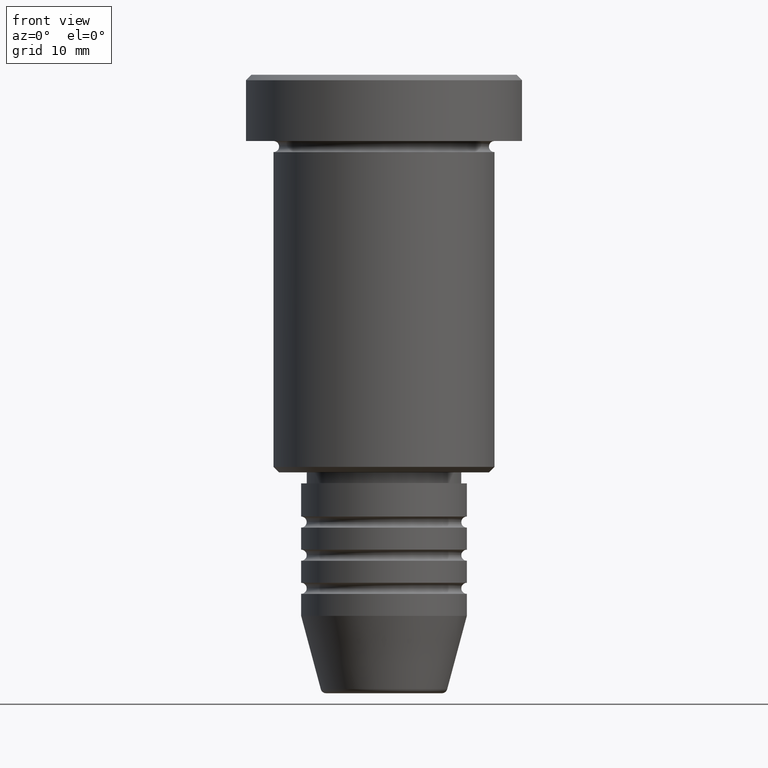
[diagram: clean part render]
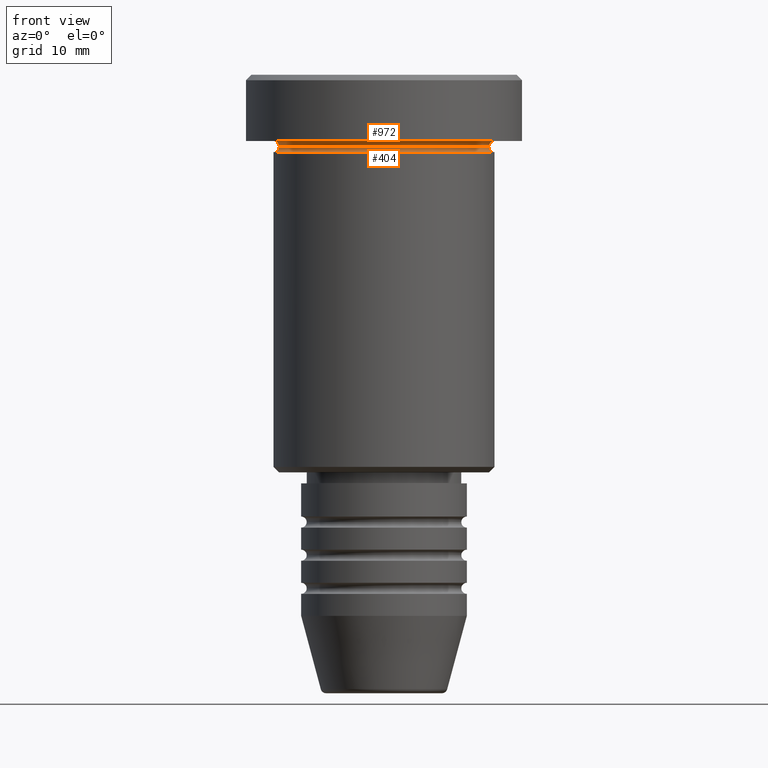
[diagram: same view with one multi-face feature highlighted, each face labeled with its STEP entity id]
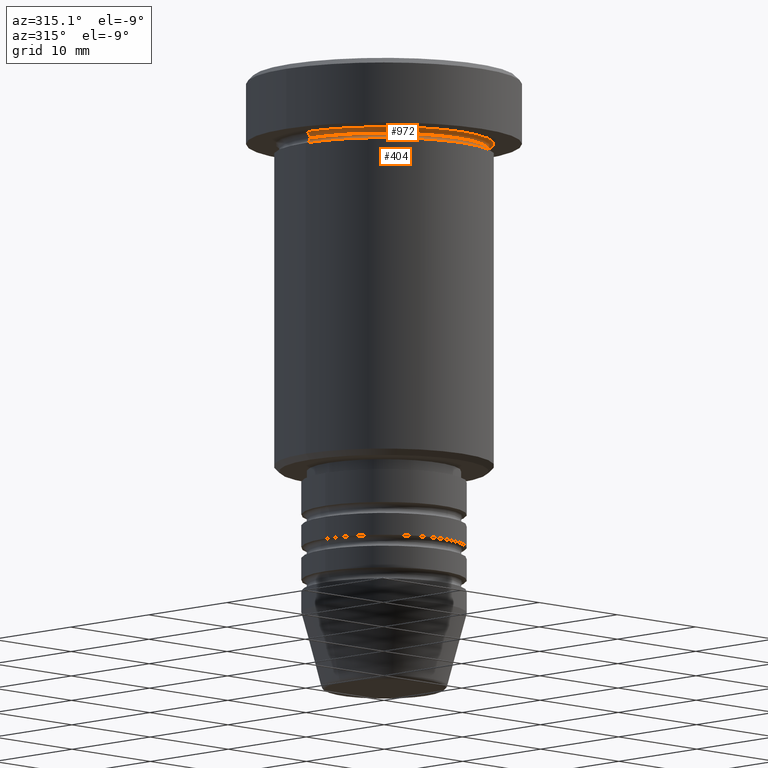
[diagram: same view with one multi-face feature highlighted, each face labeled with its STEP entity id]
A machine part, front view. The highlighted faces form ONE feature: a constant-radius fillet chain: 2 tangent blend faces with common blend radius 0.5 mm. The faces share edges in the B-rep.
A second angle (auxiliary view) of the same feature is appended — it is thin or edge-on in the first view.
Their STEP definitions:
[1] entity #404 (Torus):
#10 = DIRECTION ( 'NONE',  ( -0.000000000000000000, -0.000000000000000000, 1.000000000000000000 ) ) ;
#17 = AXIS2_PLACEMENT_3D ( 'NONE', #562, #10, #997 ) ;
#32 = CARTESIAN_POINT ( 'NONE',  ( 10.00000000000000000, 0.000000000000000000, -6.499999999999997335 ) ) ;
#45 = ORIENTED_EDGE ( 'NONE', *, *, #327, .T. ) ;
#66 = CARTESIAN_POINT ( 'NONE',  ( 9.500000000000000000, 0.000000000000000000, -6.499999999999997335 ) ) ;
#81 = DIRECTION ( 'NONE',  ( 1.000000000000000000, 0.000000000000000000, 0.000000000000000000 ) ) ;
#88 = EDGE_CURVE ( 'NONE', #528, #1172, #1055, .T. ) ;
#92 = CIRCLE ( 'NONE', #17, 10.00000000000000000 ) ;
#124 = DIRECTION ( 'NONE',  ( -0.000000000000000000, -0.000000000000000000, 1.000000000000000000 ) ) ;
#173 = CARTESIAN_POINT ( 'NONE',  ( 0.000000000000000000, 0.000000000000000000, -6.499999999999997335 ) ) ;
#245 = DIRECTION ( 'NONE',  ( -1.000000000000000000, 1.224646799147353454E-16, 0.000000000000000000 ) ) ;
#269 = EDGE_LOOP ( 'NONE', ( #725, #45, #1023, #478 ) ) ;
#281 = CARTESIAN_POINT ( 'NONE',  ( -9.500000000000000000, 1.194030629168669469E-15, -6.499999999999997335 ) ) ;
#291 = AXIS2_PLACEMENT_3D ( 'NONE', #173, #716, #81 ) ;
#311 = CIRCLE ( 'NONE', #1074, 0.5000000000000004441 ) ;
#324 = CIRCLE ( 'NONE', #570, 0.5000000000000004441 ) ;
#327 = EDGE_CURVE ( 'NONE', #528, #1036, #324, .T. ) ;
#348 = CARTESIAN_POINT ( 'NONE',  ( 10.00000000000000000, 0.000000000000000000, -6.999999999999996447 ) ) ;
#384 = AXIS2_PLACEMENT_3D ( 'NONE', #944, #124, #854 ) ;
#400 = DIRECTION ( 'NONE',  ( 0.000000000000000000, -1.000000000000000000, 0.000000000000000000 ) ) ;
#404 = ADVANCED_FACE ( 'NONE', ( #1037 ), #896, .F. ) ;
#422 = DIRECTION ( 'NONE',  ( 1.224646799147353207E-16, 1.000000000000000000, 0.000000000000000000 ) ) ;
#478 = ORIENTED_EDGE ( 'NONE', *, *, #1153, .F. ) ;
#528 = VERTEX_POINT ( 'NONE', #281 ) ;
#562 = CARTESIAN_POINT ( 'NONE',  ( 0.000000000000000000, 0.000000000000000000, -6.999999999999996447 ) ) ;
#570 = AXIS2_PLACEMENT_3D ( 'NONE', #675, #422, #245 ) ;
#629 = EDGE_CURVE ( 'NONE', #1036, #903, #92, .T. ) ;
#675 = CARTESIAN_POINT ( 'NONE',  ( -10.00000000000000000, 1.224646799147353256E-15, -6.499999999999997335 ) ) ;
#676 = DIRECTION ( 'NONE',  ( 0.000000000000000000, 0.000000000000000000, -1.000000000000000000 ) ) ;
#716 = DIRECTION ( 'NONE',  ( -0.000000000000000000, -0.000000000000000000, 1.000000000000000000 ) ) ;
#725 = ORIENTED_EDGE ( 'NONE', *, *, #88, .F. ) ;
#854 = DIRECTION ( 'NONE',  ( 1.000000000000000000, 0.000000000000000000, 0.000000000000000000 ) ) ;
#896 = TOROIDAL_SURFACE ( 'NONE', #384, 10.00000000000000000, 0.5000000000000000000 ) ;
#903 = VERTEX_POINT ( 'NONE', #348 ) ;
#944 = CARTESIAN_POINT ( 'NONE',  ( 0.000000000000000000, 0.000000000000000000, -6.499999999999997335 ) ) ;
#997 = DIRECTION ( 'NONE',  ( 1.000000000000000000, 0.000000000000000000, 0.000000000000000000 ) ) ;
#1023 = ORIENTED_EDGE ( 'NONE', *, *, #629, .T. ) ;
#1036 = VERTEX_POINT ( 'NONE', #1125 ) ;
#1037 = FACE_OUTER_BOUND ( 'NONE', #269, .T. ) ;
#1055 = CIRCLE ( 'NONE', #291, 9.500000000000000000 ) ;
#1074 = AXIS2_PLACEMENT_3D ( 'NONE', #32, #400, #676 ) ;
#1125 = CARTESIAN_POINT ( 'NONE',  ( -10.00000000000000000, 1.224646799147353256E-15, -6.999999999999996447 ) ) ;
#1153 = EDGE_CURVE ( 'NONE', #1172, #903, #311, .T. ) ;
#1172 = VERTEX_POINT ( 'NONE', #66 ) ;
[2] entity #972 (Torus):
#41 = AXIS2_PLACEMENT_3D ( 'NONE', #242, #144, #509 ) ;
#66 = CARTESIAN_POINT ( 'NONE',  ( 9.500000000000000000, 0.000000000000000000, -6.499999999999997335 ) ) ;
#81 = DIRECTION ( 'NONE',  ( 1.000000000000000000, 0.000000000000000000, 0.000000000000000000 ) ) ;
#88 = EDGE_CURVE ( 'NONE', #528, #1172, #1055, .T. ) ;
#144 = DIRECTION ( 'NONE',  ( -0.000000000000000000, -1.000000000000000000, -0.000000000000000000 ) ) ;
#173 = CARTESIAN_POINT ( 'NONE',  ( 0.000000000000000000, 0.000000000000000000, -6.499999999999997335 ) ) ;
#198 = AXIS2_PLACEMENT_3D ( 'NONE', #815, #630, #448 ) ;
#220 = ORIENTED_EDGE ( 'NONE', *, *, #544, .T. ) ;
#242 = CARTESIAN_POINT ( 'NONE',  ( -10.00000000000000000, 0.000000000000000000, -6.499999999999997335 ) ) ;
#281 = CARTESIAN_POINT ( 'NONE',  ( -9.500000000000000000, 1.194030629168669469E-15, -6.499999999999997335 ) ) ;
#291 = AXIS2_PLACEMENT_3D ( 'NONE', #173, #716, #81 ) ;
#370 = DIRECTION ( 'NONE',  ( -1.224646799147353207E-16, 1.000000000000000000, 0.000000000000000000 ) ) ;
#371 = EDGE_CURVE ( 'NONE', #672, #1152, #498, .T. ) ;
#448 = DIRECTION ( 'NONE',  ( -1.000000000000000000, 0.000000000000000000, 0.000000000000000000 ) ) ;
#456 = ORIENTED_EDGE ( 'NONE', *, *, #88, .T. ) ;
#498 = CIRCLE ( 'NONE', #778, 10.00000000000000000 ) ;
#509 = DIRECTION ( 'NONE',  ( 0.000000000000000000, 0.000000000000000000, -1.000000000000000000 ) ) ;
#528 = VERTEX_POINT ( 'NONE', #281 ) ;
#544 = EDGE_CURVE ( 'NONE', #1172, #1152, #954, .T. ) ;
#628 = EDGE_LOOP ( 'NONE', ( #456, #220, #1095, #1045 ) ) ;
#630 = DIRECTION ( 'NONE',  ( 0.000000000000000000, 0.000000000000000000, -1.000000000000000000 ) ) ;
#672 = VERTEX_POINT ( 'NONE', #749 ) ;
#716 = DIRECTION ( 'NONE',  ( -0.000000000000000000, -0.000000000000000000, 1.000000000000000000 ) ) ;
#722 = DIRECTION ( 'NONE',  ( -1.000000000000000000, -1.224646799147353454E-16, 0.000000000000000000 ) ) ;
#726 = AXIS2_PLACEMENT_3D ( 'NONE', #1173, #370, #722 ) ;
#749 = CARTESIAN_POINT ( 'NONE',  ( -10.00000000000000000, 0.000000000000000000, -5.999999999999996447 ) ) ;
#778 = AXIS2_PLACEMENT_3D ( 'NONE', #963, #1136, #958 ) ;
#815 = CARTESIAN_POINT ( 'NONE',  ( 0.000000000000000000, 0.000000000000000000, -6.499999999999997335 ) ) ;
#832 = EDGE_CURVE ( 'NONE', #528, #672, #1146, .T. ) ;
#850 = CARTESIAN_POINT ( 'NONE',  ( 10.00000000000000000, 1.224646799147353256E-15, -5.999999999999996447 ) ) ;
#900 = FACE_OUTER_BOUND ( 'NONE', #628, .T. ) ;
#954 = CIRCLE ( 'NONE', #726, 0.5000000000000004441 ) ;
#958 = DIRECTION ( 'NONE',  ( -1.000000000000000000, 0.000000000000000000, 0.000000000000000000 ) ) ;
#963 = CARTESIAN_POINT ( 'NONE',  ( 0.000000000000000000, 0.000000000000000000, -5.999999999999996447 ) ) ;
#972 = ADVANCED_FACE ( 'NONE', ( #900 ), #1032, .F. ) ;
#1032 = TOROIDAL_SURFACE ( 'NONE', #198, 10.00000000000000000, 0.5000000000000000000 ) ;
#1045 = ORIENTED_EDGE ( 'NONE', *, *, #832, .F. ) ;
#1055 = CIRCLE ( 'NONE', #291, 9.500000000000000000 ) ;
#1095 = ORIENTED_EDGE ( 'NONE', *, *, #371, .F. ) ;
#1136 = DIRECTION ( 'NONE',  ( -0.000000000000000000, -0.000000000000000000, 1.000000000000000000 ) ) ;
#1146 = CIRCLE ( 'NONE', #41, 0.5000000000000004441 ) ;
#1152 = VERTEX_POINT ( 'NONE', #850 ) ;
#1172 = VERTEX_POINT ( 'NONE', #66 ) ;
#1173 = CARTESIAN_POINT ( 'NONE',  ( 10.00000000000000000, 1.224646799147353256E-15, -6.499999999999997335 ) ) ;